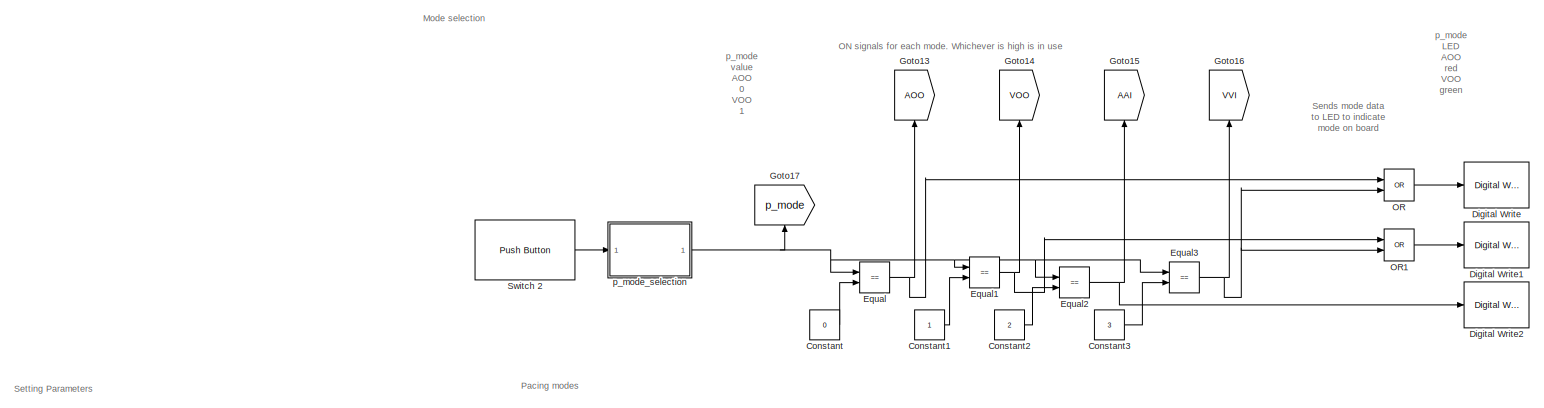
[diagram: root canvas - part 1/4, top center region]
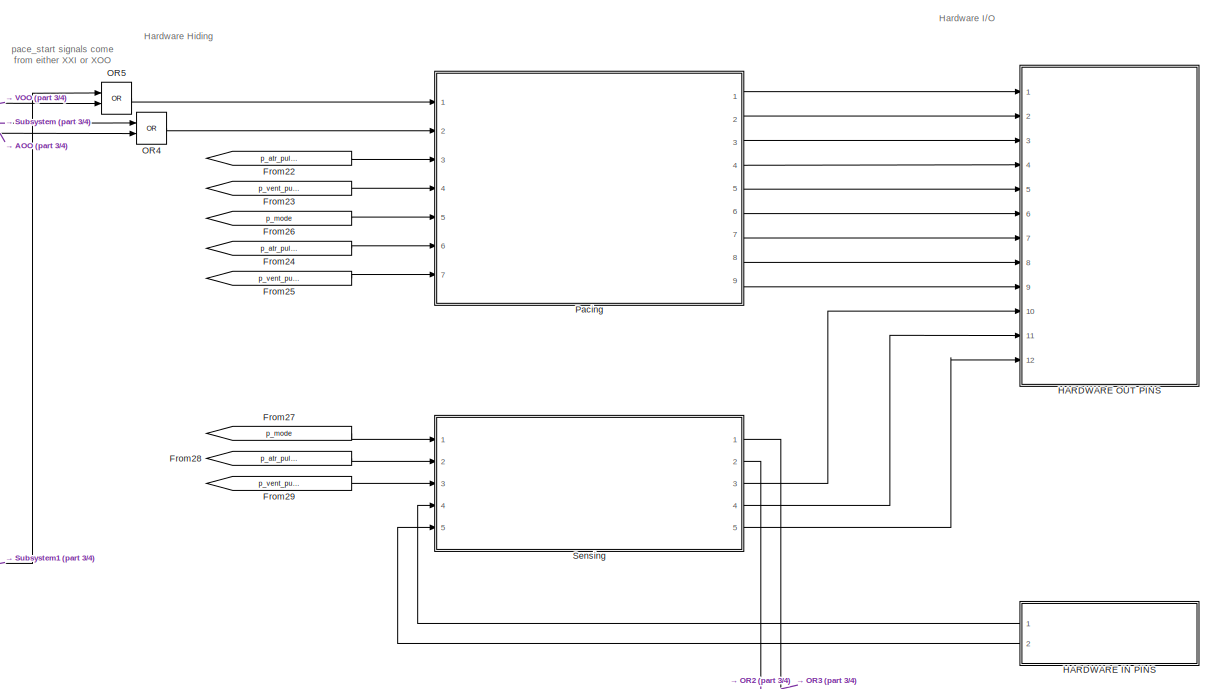
[diagram: root canvas - part 2/4, middle right region]
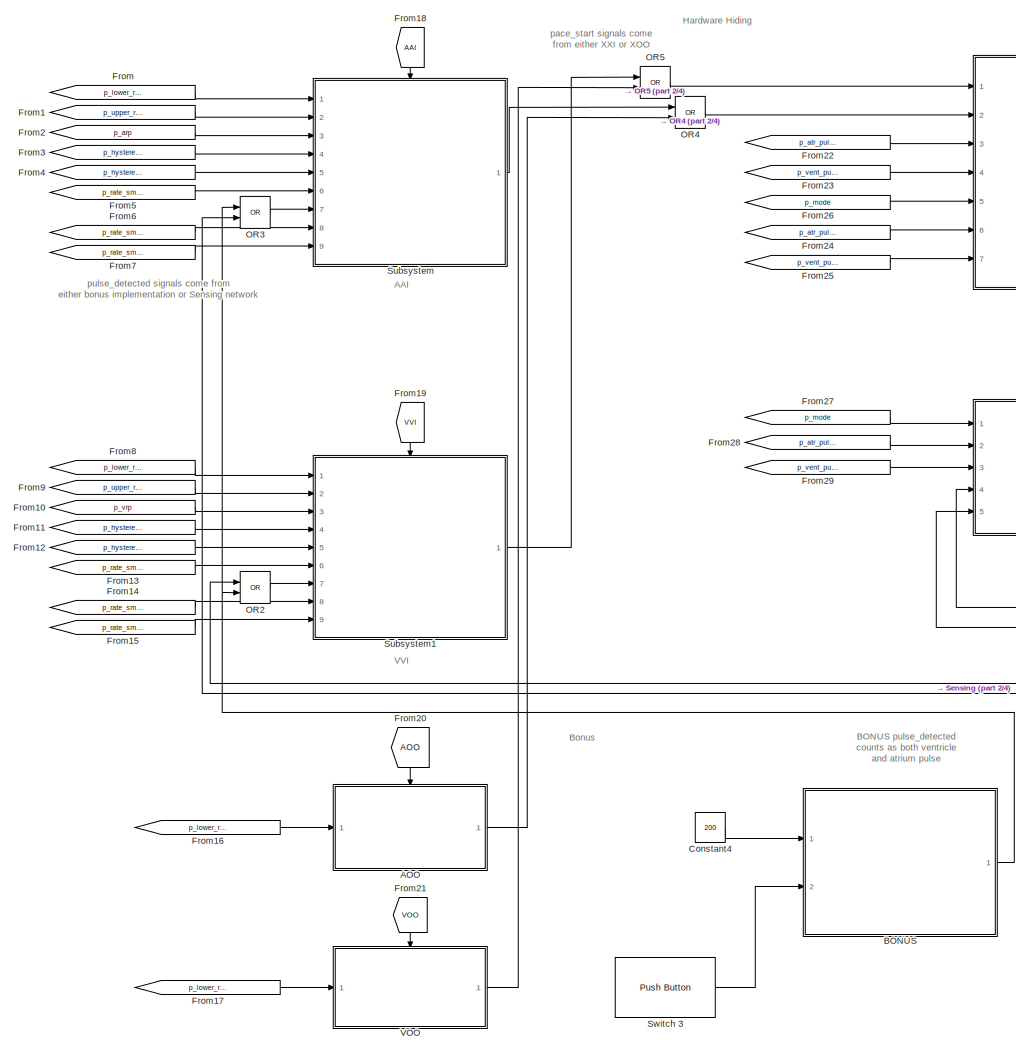
[diagram: root canvas - part 3/4, central region]
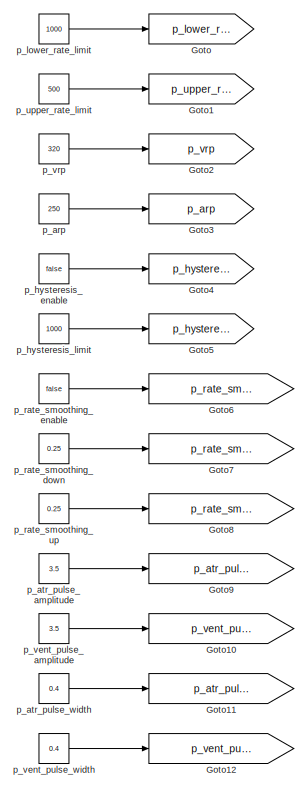
[diagram: root canvas - part 4/4, middle left region]
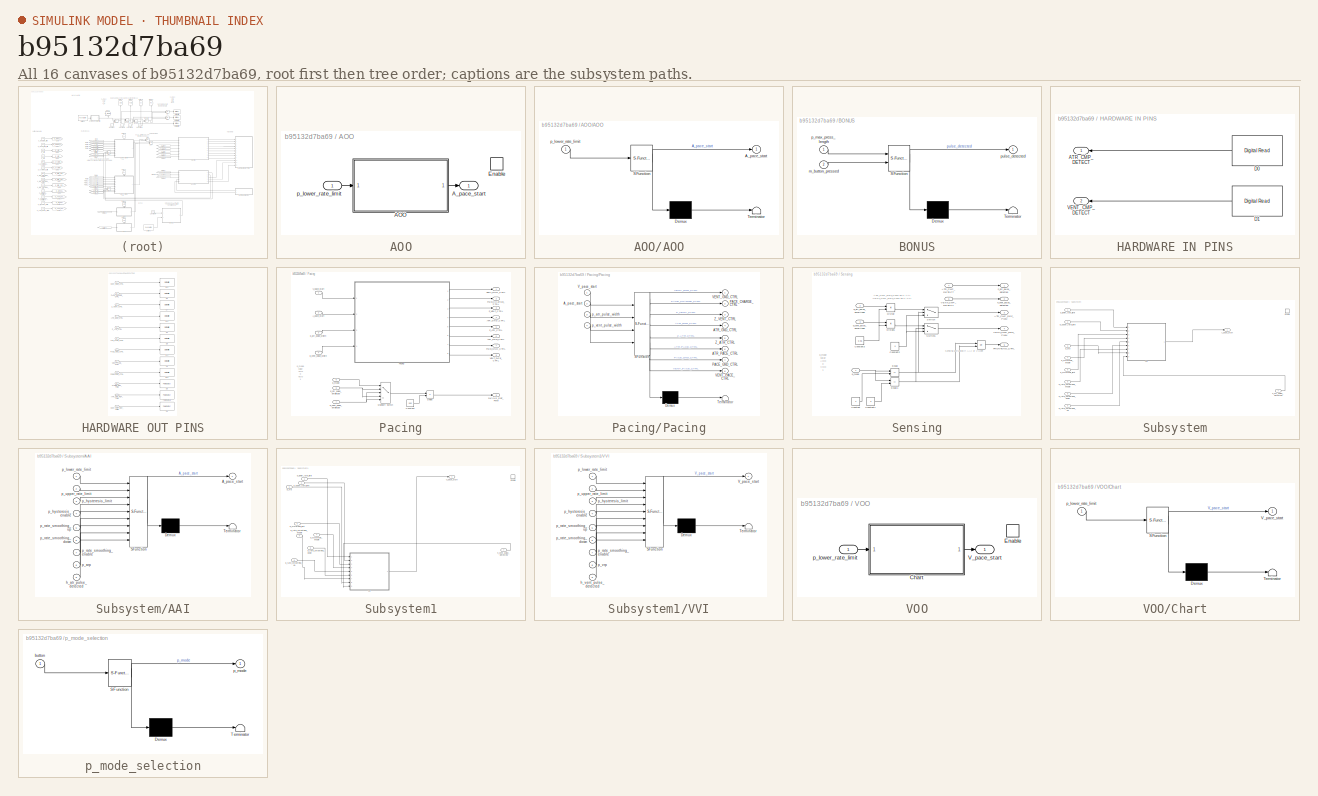
[diagram: thumbnail index - all 16 canvases of the model, root first then tree order]
MODEL slx_b95132d7ba69
KIND model
CONFIG AbsTol = auto
CONFIG EnableMultiTasking = on
CONFIG FixedStep = 1e-3
CONFIG MaxStep = auto
CONFIG MinStep = auto
CONFIG RelTol = 1e-3
CONFIG SampleTimeConstraint = Unconstrained
CONFIG Solver = FixedStepAuto
CONFIG SolverName = FixedStepAuto
CONFIG StartTime = 0.0
CONFIG StopTime = 3
BLOCK [SubSystem] AOO
  Ports = [1, 1, 1]
  RequestExecContextInheritance = off
BLOCK [SubSystem] AOO/AOO
  ErrorFcn = Stateflow.Translate.translate
  PermitHierarchicalResolution = ExplicitOnly
  Ports = [1, 1]
  RequestExecContextInheritance = off
  SFBlockType = Chart
  TreatAsAtomicUnit = on
BLOCK [Demux] AOO/AOO/ Demux 
  Outputs = 1
  Ports = [1, 1]
BLOCK [S-Function] AOO/AOO/ SFunction 
  EnableBusSupport = on
  FunctionName = sf_sfun
  PortCounts = [1 2]
  Ports = [1, 2]
  SFcnIsStateOwnerBlock = off
  SFunctionDeploymentMode = off
  Tag = Stateflow S-Function 6
BLOCK [Terminator] AOO/AOO/ Terminator 
BLOCK [Outport] AOO/AOO/A_pace_start
BLOCK [Inport] AOO/AOO/p_lower_rate_limit
BLOCK [Outport] AOO/A_pace_start
BLOCK [EnablePort] AOO/Enable
  Ports = []
BLOCK [Inport] AOO/p_lower_rate_limit
BLOCK [SubSystem] BONUS
  ErrorFcn = Stateflow.Translate.translate
  PermitHierarchicalResolution = ExplicitOnly
  Ports = [2, 1]
  RequestExecContextInheritance = off
  SFBlockType = Chart
  TreatAsAtomicUnit = on
BLOCK [Demux] BONUS/ Demux 
  Outputs = 1
  Ports = [1, 1]
BLOCK [S-Function] BONUS/ SFunction 
  EnableBusSupport = on
  FunctionName = sf_sfun
  PortCounts = [2 2]
  Ports = [2, 2]
  SFcnIsStateOwnerBlock = off
  SFunctionDeploymentMode = off
  Tag = Stateflow S-Function 4
BLOCK [Terminator] BONUS/ Terminator 
BLOCK [Inport] BONUS/m_button_pressed
  Port = 2
BLOCK [Inport] BONUS/p_max_press_length
BLOCK [Outport] BONUS/pulse_detected
BLOCK [Constant] Constant
  Value = 0
BLOCK [Constant] Constant1
BLOCK [Constant] Constant2
  Value = 2
BLOCK [Constant] Constant3
  Value = 3
BLOCK [Constant] Constant4
  Value = 200
BLOCK [Reference] Digital Write  REF=frdmk64flib/Digital Write
  Ports = [1]
  SourceBlock = frdmk64flib/Digital Write
  SourceProductBaseCode = EC_FRDM_K64F
  SourceType = freedomk64f.DigitalWrite
BLOCK [Reference] Digital Write1  REF=frdmk64flib/Digital Write
  Ports = [1]
  SourceBlock = frdmk64flib/Digital Write
  SourceProductBaseCode = EC_FRDM_K64F
  SourceType = freedomk64f.DigitalWrite
BLOCK [Reference] Digital Write2  REF=frdmk64flib/Digital Write
  Ports = [1]
  SourceBlock = frdmk64flib/Digital Write
  SourceProductBaseCode = EC_FRDM_K64F
  SourceType = freedomk64f.DigitalWrite
BLOCK [RelationalOperator] Equal
  InputSameDT = off
  Operator = ==
  OutDataTypeStr = boolean
  Ports = [2, 1]
  RndMeth = Simplest
BLOCK [RelationalOperator] Equal1
  InputSameDT = off
  Operator = ==
  OutDataTypeStr = boolean
  Ports = [2, 1]
  RndMeth = Simplest
BLOCK [RelationalOperator] Equal2
  InputSameDT = off
  Operator = ==
  OutDataTypeStr = boolean
  Ports = [2, 1]
  RndMeth = Simplest
BLOCK [RelationalOperator] Equal3
  InputSameDT = off
  Operator = ==
  OutDataTypeStr = boolean
  Ports = [2, 1]
  RndMeth = Simplest
BLOCK [From] From
  GotoTag = p_lower_rate_limit
BLOCK [From] From1
  GotoTag = p_upper_rate_limit
BLOCK [From] From10
  GotoTag = p_vrp
BLOCK [From] From11
  GotoTag = p_hysteresis_enable
BLOCK [From] From12
  GotoTag = p_hysteresis_limit
BLOCK [From] From13
  GotoTag = p_rate_smoothing_enable
BLOCK [From] From14
  GotoTag = p_rate_smoothing_down
BLOCK [From] From15
  GotoTag = p_rate_smoothing_up
BLOCK [From] From16
  GotoTag = p_lower_rate_limit
BLOCK [From] From17
  GotoTag = p_lower_rate_limit
BLOCK [From] From18
  GotoTag = AAI
  NameLocation = left
BLOCK [From] From19
  GotoTag = VVI
  NameLocation = left
BLOCK [From] From2
  GotoTag = p_arp
BLOCK [From] From20
  GotoTag = AOO
  NameLocation = left
BLOCK [From] From21
  GotoTag = VOO
  NameLocation = left
BLOCK [From] From22
  GotoTag = p_atr_pulse_width
BLOCK [From] From23
  GotoTag = p_vent_pulse_width
BLOCK [From] From24
  GotoTag = p_atr_pulse_amplitude
BLOCK [From] From25
  GotoTag = p_vent_pulse_amplitude
BLOCK [From] From26
  GotoTag = p_mode
BLOCK [From] From27
  GotoTag = p_mode
BLOCK [From] From28
  GotoTag = p_atr_pulse_amplitude
BLOCK [From] From29
  GotoTag = p_vent_pulse_amplitude
BLOCK [From] From3
  GotoTag = p_hysteresis_enable
BLOCK [From] From4
  GotoTag = p_hysteresis_limit
BLOCK [From] From5
  GotoTag = p_rate_smoothing_enable
BLOCK [From] From6
  GotoTag = p_rate_smoothing_down
BLOCK [From] From7
  GotoTag = p_rate_smoothing_up
BLOCK [From] From8
  GotoTag = p_lower_rate_limit
BLOCK [From] From9
  GotoTag = p_upper_rate_limit
BLOCK [Goto] Goto
  GotoTag = p_lower_rate_limit
BLOCK [Goto] Goto1
  GotoTag = p_upper_rate_limit
BLOCK [Goto] Goto10
  GotoTag = p_vent_pulse_amplitude
BLOCK [Goto] Goto11
  GotoTag = p_atr_pulse_width
BLOCK [Goto] Goto12
  GotoTag = p_vent_pulse_width
BLOCK [Goto] Goto13
  GotoTag = AOO
  NameLocation = right
BLOCK [Goto] Goto14
  GotoTag = VOO
  NameLocation = right
BLOCK [Goto] Goto15
  GotoTag = AAI
  NameLocation = right
BLOCK [Goto] Goto16
  GotoTag = VVI
  NameLocation = right
BLOCK [Goto] Goto17
  GotoTag = p_mode
  NameLocation = right
BLOCK [Goto] Goto2
  GotoTag = p_vrp
BLOCK [Goto] Goto3
  GotoTag = p_arp
BLOCK [Goto] Goto4
  GotoTag = p_hysteresis_enable
BLOCK [Goto] Goto5
  GotoTag = p_hysteresis_limit
BLOCK [Goto] Goto6
  GotoTag = p_rate_smoothing_enable
BLOCK [Goto] Goto7
  GotoTag = p_rate_smoothing_down
BLOCK [Goto] Goto8
  GotoTag = p_rate_smoothing_up
BLOCK [Goto] Goto9
  GotoTag = p_atr_pulse_amplitude
BLOCK [SubSystem] HARDWARE IN PINS
  Ports = [0, 2]
  RequestExecContextInheritance = off
BLOCK [Outport] HARDWARE IN PINS/ATR_CMP_DETECT
BLOCK [Reference] HARDWARE IN PINS/D0  REF=frdmk64flib/Digital Read
  Ports = [0, 1]
  SourceBlock = frdmk64flib/Digital Read
  SourceProductBaseCode = EC_FRDM_K64F
  SourceType = freedomk64f.DigitalRead
BLOCK [Reference] HARDWARE IN PINS/D1  REF=frdmk64flib/Digital Read
  Ports = [0, 1]
  SourceBlock = frdmk64flib/Digital Read
  SourceProductBaseCode = EC_FRDM_K64F
  SourceType = freedomk64f.DigitalRead
BLOCK [Outport] HARDWARE IN PINS/VENT_CMP_DETECT
  Port = 2
BLOCK [SubSystem] HARDWARE OUT PINS
  Ports = [12]
  RequestExecContextInheritance = off
BLOCK [Inport] HARDWARE OUT PINS/ATR_CMP_REF_PWM
  Port = 10
BLOCK [Inport] HARDWARE OUT PINS/ATR_GND_CTRL
  Port = 4
BLOCK [Inport] HARDWARE OUT PINS/ATR_PACE_CTRL
  Port = 6
BLOCK [Reference] HARDWARE OUT PINS/D10  REF=frdmk64flib/Digital Write
  Ports = [1]
  SourceBlock = frdmk64flib/Digital Write
  SourceProductBaseCode = EC_FRDM_K64F
  SourceType = freedomk64f.DigitalWrite
BLOCK [Reference] HARDWARE OUT PINS/D11  REF=frdmk64flib/Digital Write
  Ports = [1]
  SourceBlock = frdmk64flib/Digital Write
  SourceProductBaseCode = EC_FRDM_K64F
  SourceType = freedomk64f.DigitalWrite
BLOCK [Reference] HARDWARE OUT PINS/D12  REF=frdmk64flib/Digital Write
  Ports = [1]
  SourceBlock = frdmk64flib/Digital Write
  SourceProductBaseCode = EC_FRDM_K64F
  SourceType = freedomk64f.DigitalWrite
BLOCK [Reference] HARDWARE OUT PINS/D13  REF=frdmk64flib/Digital Write
  Ports = [1]
  SourceBlock = frdmk64flib/Digital Write
  SourceProductBaseCode = EC_FRDM_K64F
  SourceType = freedomk64f.DigitalWrite
BLOCK [Reference] HARDWARE OUT PINS/D2  REF=frdmk64flib/Digital Write
  Ports = [1]
  SourceBlock = frdmk64flib/Digital Write
  SourceProductBaseCode = EC_FRDM_K64F
  SourceType = freedomk64f.DigitalWrite
BLOCK [Reference] HARDWARE OUT PINS/D3  REF=frdmk64flib/PWM Output
  Ports = [1]
  SourceBlock = frdmk64flib/PWM Output
  SourceProductBaseCode = EC_FRDM_K64F
  SourceType = freedomk64f.PWMOutput
BLOCK [Reference] HARDWARE OUT PINS/D4  REF=frdmk64flib/Digital Write
  Ports = [1]
  SourceBlock = frdmk64flib/Digital Write
  SourceProductBaseCode = EC_FRDM_K64F
  SourceType = freedomk64f.DigitalWrite
BLOCK [Reference] HARDWARE OUT PINS/D5  REF=frdmk64flib/PWM Output
  Ports = [1]
  SourceBlock = frdmk64flib/PWM Output
  SourceProductBaseCode = EC_FRDM_K64F
  SourceType = freedomk64f.PWMOutput
BLOCK [Reference] HARDWARE OUT PINS/D7  REF=frdmk64flib/Digital Write
  Ports = [1]
  SourceBlock = frdmk64flib/Digital Write
  SourceProductBaseCode = EC_FRDM_K64F
  SourceType = freedomk64f.DigitalWrite
BLOCK [Reference] HARDWARE OUT PINS/D8  REF=frdmk64flib/Digital Write
  Ports = [1]
  SourceBlock = frdmk64flib/Digital Write
  SourceProductBaseCode = EC_FRDM_K64F
  SourceType = freedomk64f.DigitalWrite
BLOCK [Reference] HARDWARE OUT PINS/D9  REF=frdmk64flib/Digital Write
  Ports = [1]
  SourceBlock = frdmk64flib/Digital Write
  SourceProductBaseCode = EC_FRDM_K64F
  SourceType = freedomk64f.DigitalWrite
BLOCK [Inport] HARDWARE OUT PINS/FRONTEND_CTRL
  Port = 12
BLOCK [Inport] HARDWARE OUT PINS/PACE_CHARGE_CTRL
  Port = 2
BLOCK [Inport] HARDWARE OUT PINS/PACE_GND_CTRL
  Port = 7
BLOCK [Inport] HARDWARE OUT PINS/PACING_REF_PWM
  Port = 9
BLOCK [Reference] HARDWARE OUT PINS/PWM Output1  REF=frdmk64flib/PWM Output
  Ports = [1]
  SourceBlock = frdmk64flib/PWM Output
  SourceProductBaseCode = EC_FRDM_K64F
  SourceType = freedomk64f.PWMOutput
BLOCK [Inport] HARDWARE OUT PINS/VENT_CMP_REF_PWM
  Port = 11
BLOCK [Inport] HARDWARE OUT PINS/VENT_GND_CTRL
BLOCK [Inport] HARDWARE OUT PINS/VENT_PACE_CTRL
  Port = 8
BLOCK [Inport] HARDWARE OUT PINS/Z_ATR_CTRL
  Port = 5
BLOCK [Inport] HARDWARE OUT PINS/Z_VENT_CTRL
  Port = 3
BLOCK [Logic] OR
  AllPortsSameDT = off
  IconShape = distinctive
  Operator = OR
  OutDataTypeStr = boolean
  Ports = [2, 1]
BLOCK [Logic] OR1
  AllPortsSameDT = off
  IconShape = distinctive
  Operator = OR
  OutDataTypeStr = boolean
  Ports = [2, 1]
BLOCK [Logic] OR2
  AllPortsSameDT = off
  IconShape = distinctive
  Operator = OR
  OutDataTypeStr = boolean
  Ports = [2, 1]
BLOCK [Logic] OR3
  AllPortsSameDT = off
  IconShape = distinctive
  Operator = OR
  OutDataTypeStr = boolean
  Ports = [2, 1]
BLOCK [Logic] OR4
  AllPortsSameDT = off
  IconShape = distinctive
  Operator = OR
  OutDataTypeStr = boolean
  Ports = [2, 1]
BLOCK [Logic] OR5
  AllPortsSameDT = off
  IconShape = distinctive
  Operator = OR
  OutDataTypeStr = boolean
  Ports = [2, 1]
BLOCK [SubSystem] Pacing
  Ports = [7, 9]
  RequestExecContextInheritance = off
BLOCK [Outport] Pacing/ATR_GND_CTRL
  Port = 4
BLOCK [Outport] Pacing/ATR_PACE_CTRL
  Port = 6
BLOCK [Inport] Pacing/A_pace_start
  Port = 2
BLOCK [Constant] Pacing/Constant
  Value = 0.05
BLOCK [Product] Pacing/Divide
  Inputs = */
  Ports = [2, 1]
BLOCK [MultiPortSwitch] Pacing/Multiport Switch
  DataPortOrder = Zero-based contiguous
  InputSameDT = off
  Inputs = 4
  Ports = [5, 1]
  SaturateOnIntegerOverflow = off
  zeroidx = on
BLOCK [Outport] Pacing/PACE_CHARGE_CTRL
  Port = 2
BLOCK [Outport] Pacing/PACE_GND_CTRL
  Port = 7
BLOCK [Outport] Pacing/PACING_REF_PWM
  Port = 9
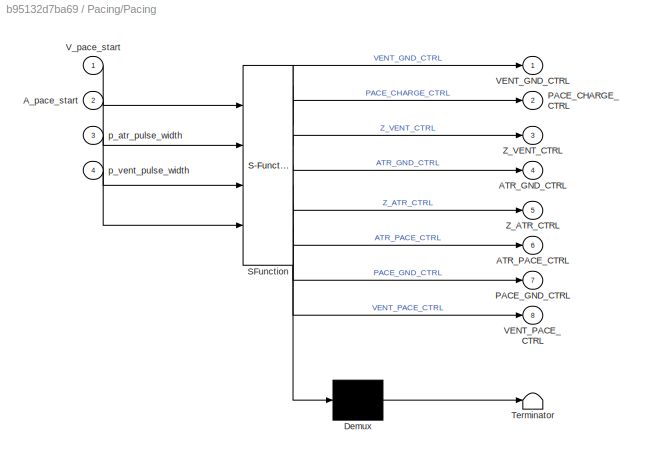
BLOCK [SubSystem] Pacing/Pacing
  ErrorFcn = Stateflow.Translate.translate
  PermitHierarchicalResolution = ExplicitOnly
  Ports = [4, 8]
  RequestExecContextInheritance = off
  SFBlockType = Chart
  TreatAsAtomicUnit = on
BLOCK [Demux] Pacing/Pacing/ Demux 
  Outputs = 1
  Ports = [1, 1]
BLOCK [S-Function] Pacing/Pacing/ SFunction 
  EnableBusSupport = on
  FunctionName = sf_sfun
  PortCounts = [4 9]
  Ports = [4, 9]
  SFcnIsStateOwnerBlock = off
  SFunctionDeploymentMode = off
  Tag = Stateflow S-Function 2
BLOCK [Terminator] Pacing/Pacing/ Terminator 
BLOCK [Outport] Pacing/Pacing/ATR_GND_CTRL
  Port = 4
BLOCK [Outport] Pacing/Pacing/ATR_PACE_CTRL
  Port = 6
BLOCK [Inport] Pacing/Pacing/A_pace_start
  Port = 2
BLOCK [Outport] Pacing/Pacing/PACE_CHARGE_CTRL
  Port = 2
BLOCK [Outport] Pacing/Pacing/PACE_GND_CTRL
  Port = 7
BLOCK [Outport] Pacing/Pacing/VENT_GND_CTRL
BLOCK [Outport] Pacing/Pacing/VENT_PACE_CTRL
  Port = 8
BLOCK [Inport] Pacing/Pacing/V_pace_start
BLOCK [Outport] Pacing/Pacing/Z_ATR_CTRL
  Port = 5
BLOCK [Outport] Pacing/Pacing/Z_VENT_CTRL
  Port = 3
BLOCK [Inport] Pacing/Pacing/p_atr_pulse_width
  Port = 3
BLOCK [Inport] Pacing/Pacing/p_vent_pulse_width
  Port = 4
BLOCK [Outport] Pacing/VENT_GND_CTRL
BLOCK [Outport] Pacing/VENT_PACE_CTRL
  Port = 8
BLOCK [Inport] Pacing/V_pace_start
BLOCK [Outport] Pacing/Z_ATR_CTRL
  Port = 5
BLOCK [Outport] Pacing/Z_VENT_CTRL
  Port = 3
BLOCK [Inport] Pacing/p_atr_pulse_amplitude
  Port = 6
BLOCK [Inport] Pacing/p_atr_pulse_width
  Port = 3
BLOCK [Inport] Pacing/p_mode
  Port = 5
BLOCK [Inport] Pacing/p_vent_pulse_amplitude
  Port = 7
BLOCK [Inport] Pacing/p_vent_pulse_width
  Port = 4
BLOCK [SubSystem] Sensing
  Ports = [5, 5]
  RequestExecContextInheritance = off
BLOCK [Inport] Sensing/ATR_CMP_DETECT
  Port = 4
BLOCK [Outport] Sensing/ATR_CMP_REF_PWM
  Port = 3
BLOCK [Constant] Sensing/Constant
  Value = 2
BLOCK [Constant] Sensing/Constant1
  Value = 3
BLOCK [Constant] Sensing/Constant2
  Value = 0
BLOCK [Constant] Sensing/Constant3
  Value = 0.05
BLOCK [Product] Sensing/Divide
  Inputs = */
  Ports = [2, 1]
BLOCK [Product] Sensing/Divide1
  Inputs = */
  Ports = [2, 1]
BLOCK [RelationalOperator] Sensing/Equal
  InputSameDT = off
  Operator = ==
  OutDataTypeStr = boolean
  Ports = [2, 1]
  RndMeth = Simplest
BLOCK [RelationalOperator] Sensing/Equal1
  InputSameDT = off
  Operator = ==
  OutDataTypeStr = boolean
  Ports = [2, 1]
  RndMeth = Simplest
BLOCK [Outport] Sensing/FRONTEND_CTRL
  Port = 5
BLOCK [Logic] Sensing/OR
  AllPortsSameDT = off
  IconShape = distinctive
  Operator = OR
  OutDataTypeStr = boolean
  Ports = [2, 1]
BLOCK [Switch] Sensing/Switch
  Criteria = u2 > Threshold
  InputSameDT = off
  SaturateOnIntegerOverflow = off
BLOCK [Switch] Sensing/Switch1
  Criteria = u2 > Threshold
  InputSameDT = off
  SaturateOnIntegerOverflow = off
BLOCK [Inport] Sensing/VENT_CMP_DETECT
  Port = 5
BLOCK [Outport] Sensing/VENT_CMP_REF_PWM
  Port = 4
BLOCK [Outport] Sensing/h_atr_pulse_detected
BLOCK [Outport] Sensing/h_vent_pulse_detected
  Port = 2
BLOCK [Inport] Sensing/p_atr_pulse_amplitude
  Port = 2
BLOCK [Inport] Sensing/p_mode
BLOCK [Inport] Sensing/p_vent_pulse_amplitude
  Port = 3
BLOCK [SubSystem] Subsystem
  Ports = [9, 1, 1]
  RequestExecContextInheritance = off
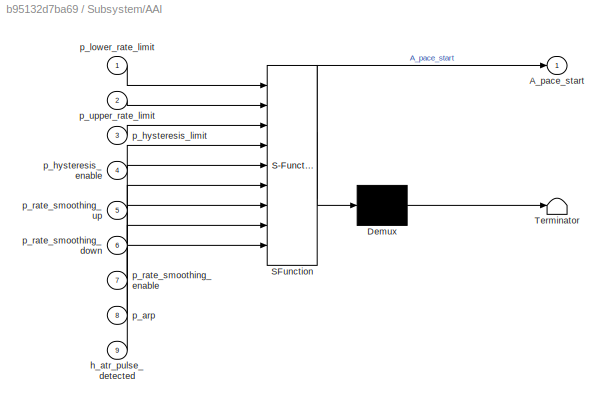
BLOCK [SubSystem] Subsystem/AAI
  ErrorFcn = Stateflow.Translate.translate
  PermitHierarchicalResolution = ExplicitOnly
  Ports = [9, 1]
  RequestExecContextInheritance = off
  SFBlockType = Chart
  TreatAsAtomicUnit = on
BLOCK [Demux] Subsystem/AAI/ Demux 
  Outputs = 1
  Ports = [1, 1]
BLOCK [S-Function] Subsystem/AAI/ SFunction 
  EnableBusSupport = on
  FunctionName = sf_sfun
  PortCounts = [9 2]
  Ports = [9, 2]
  SFcnIsStateOwnerBlock = off
  SFunctionDeploymentMode = off
  Tag = Stateflow S-Function 1
BLOCK [Terminator] Subsystem/AAI/ Terminator 
BLOCK [Outport] Subsystem/AAI/A_pace_start
BLOCK [Inport] Subsystem/AAI/h_atr_pulse_detected
  Port = 9
BLOCK [Inport] Subsystem/AAI/p_arp
  Port = 8
BLOCK [Inport] Subsystem/AAI/p_hysteresis_enable
  Port = 4
BLOCK [Inport] Subsystem/AAI/p_hysteresis_limit
  Port = 3
BLOCK [Inport] Subsystem/AAI/p_lower_rate_limit
BLOCK [Inport] Subsystem/AAI/p_rate_smoothing_down
  Port = 6
BLOCK [Inport] Subsystem/AAI/p_rate_smoothing_enable
  Port = 7
BLOCK [Inport] Subsystem/AAI/p_rate_smoothing_up
  Port = 5
BLOCK [Inport] Subsystem/AAI/p_upper_rate_limit
  Port = 2
BLOCK [Outport] Subsystem/A_pace_start
BLOCK [EnablePort] Subsystem/Enable
  Ports = []
BLOCK [Inport] Subsystem/h_atr_pulse_detected
  Port = 7
BLOCK [Inport] Subsystem/p_arp
  Port = 3
BLOCK [Inport] Subsystem/p_hysteresis_enable
  Port = 4
BLOCK [Inport] Subsystem/p_hysteresis_limit
  Port = 5
BLOCK [Inport] Subsystem/p_lower_rate_limit
BLOCK [Inport] Subsystem/p_rate_smoothing_down
  Port = 8
BLOCK [Inport] Subsystem/p_rate_smoothing_enable
  Port = 6
BLOCK [Inport] Subsystem/p_rate_smoothing_up
  Port = 9
BLOCK [Inport] Subsystem/p_upper_rate_limit
  Port = 2
BLOCK [SubSystem] Subsystem1
  Ports = [9, 1, 1]
  RequestExecContextInheritance = off
BLOCK [EnablePort] Subsystem1/Enable
  Ports = []
BLOCK [SubSystem] Subsystem1/VVI
  ErrorFcn = Stateflow.Translate.translate
  PermitHierarchicalResolution = ExplicitOnly
  Ports = [9, 1]
  RequestExecContextInheritance = off
  SFBlockType = Chart
  TreatAsAtomicUnit = on
BLOCK [Demux] Subsystem1/VVI/ Demux 
  Outputs = 1
  Ports = [1, 1]
BLOCK [S-Function] Subsystem1/VVI/ SFunction 
  EnableBusSupport = on
  FunctionName = sf_sfun
  PortCounts = [9 2]
  Ports = [9, 2]
  SFcnIsStateOwnerBlock = off
  SFunctionDeploymentMode = off
  Tag = Stateflow S-Function 3
BLOCK [Terminator] Subsystem1/VVI/ Terminator 
BLOCK [Outport] Subsystem1/VVI/V_pace_start
BLOCK [Inport] Subsystem1/VVI/h_vent_pulse_detected
  Port = 9
BLOCK [Inport] Subsystem1/VVI/p_hysteresis_enable
  Port = 4
BLOCK [Inport] Subsystem1/VVI/p_hysteresis_limit
  Port = 3
BLOCK [Inport] Subsystem1/VVI/p_lower_rate_limit
BLOCK [Inport] Subsystem1/VVI/p_rate_smoothing_down
  Port = 6
BLOCK [Inport] Subsystem1/VVI/p_rate_smoothing_enable
  Port = 7
BLOCK [Inport] Subsystem1/VVI/p_rate_smoothing_up
  Port = 5
BLOCK [Inport] Subsystem1/VVI/p_upper_rate_limit
  Port = 2
BLOCK [Inport] Subsystem1/VVI/p_vrp
  Port = 8
BLOCK [Outport] Subsystem1/V_pace_start
BLOCK [Inport] Subsystem1/h_vent_pulse_detected
  Port = 7
BLOCK [Inport] Subsystem1/p_hysteresis_enable
  Port = 4
BLOCK [Inport] Subsystem1/p_hysteresis_limit
  Port = 5
BLOCK [Inport] Subsystem1/p_lower_rate_limit
BLOCK [Inport] Subsystem1/p_rate_smoothing_down
  Port = 8
BLOCK [Inport] Subsystem1/p_rate_smoothing_enable
  Port = 6
BLOCK [Inport] Subsystem1/p_rate_smoothing_up
  Port = 9
BLOCK [Inport] Subsystem1/p_upper_rate_limit
  Port = 2
BLOCK [Inport] Subsystem1/p_vrp
  Port = 3
BLOCK [Reference] Switch 2  REF=frdmk64flib/Push Button
  Ports = [0, 1]
  SourceBlock = frdmk64flib/Push Button
  SourceProductBaseCode = EC_FRDM_K64F
  SourceType = freedomk64f.PushButton
BLOCK [Reference] Switch 3  REF=frdmk64flib/Push Button
  Ports = [0, 1]
  SourceBlock = frdmk64flib/Push Button
  SourceProductBaseCode = EC_FRDM_K64F
  SourceType = freedomk64f.PushButton
BLOCK [SubSystem] VOO
  Ports = [1, 1, 1]
  RequestExecContextInheritance = off
BLOCK [SubSystem] VOO/Chart
  ErrorFcn = Stateflow.Translate.translate
  PermitHierarchicalResolution = ExplicitOnly
  Ports = [1, 1]
  RequestExecContextInheritance = off
  SFBlockType = Chart
  TreatAsAtomicUnit = on
BLOCK [Demux] VOO/Chart/ Demux 
  Outputs = 1
  Ports = [1, 1]
BLOCK [S-Function] VOO/Chart/ SFunction 
  EnableBusSupport = on
  FunctionName = sf_sfun
  PortCounts = [1 2]
  Ports = [1, 2]
  SFcnIsStateOwnerBlock = off
  SFunctionDeploymentMode = off
  Tag = Stateflow S-Function 7
BLOCK [Terminator] VOO/Chart/ Terminator 
BLOCK [Outport] VOO/Chart/V_pace_start
BLOCK [Inport] VOO/Chart/p_lower_rate_limit
BLOCK [EnablePort] VOO/Enable
  Ports = []
BLOCK [Outport] VOO/V_pace_start
BLOCK [Inport] VOO/p_lower_rate_limit
BLOCK [Constant] p_arp
  Value = 250
BLOCK [Constant] p_atr_pulse_amplitude
  Value = 3.5
BLOCK [Constant] p_atr_pulse_width
  Value = 0.4
BLOCK [Constant] p_hysteresis_enable
  Value = false
BLOCK [Constant] p_hysteresis_limit
  Value = 1000
BLOCK [Constant] p_lower_rate_limit
  Value = 1000
BLOCK [SubSystem] p_mode_selection
  ErrorFcn = Stateflow.Translate.translate
  PermitHierarchicalResolution = ExplicitOnly
  Ports = [1, 1]
  RequestExecContextInheritance = off
  SFBlockType = Chart
  TreatAsAtomicUnit = on
BLOCK [Demux] p_mode_selection/ Demux 
  Outputs = 1
  Ports = [1, 1]
BLOCK [S-Function] p_mode_selection/ SFunction 
  EnableBusSupport = on
  FunctionName = sf_sfun
  PortCounts = [1 2]
  Ports = [1, 2]
  SFcnIsStateOwnerBlock = off
  SFunctionDeploymentMode = off
  Tag = Stateflow S-Function 5
BLOCK [Terminator] p_mode_selection/ Terminator 
BLOCK [Inport] p_mode_selection/button
BLOCK [Outport] p_mode_selection/p_mode
BLOCK [Constant] p_rate_smoothing_down
  Value = 0.25
BLOCK [Constant] p_rate_smoothing_enable
  Value = false
BLOCK [Constant] p_rate_smoothing_up
  Value = 0.25
BLOCK [Constant] p_upper_rate_limit
  Value = 500
BLOCK [Constant] p_vent_pulse_amplitude
  Value = 3.5
BLOCK [Constant] p_vent_pulse_width
  Value = 0.4
BLOCK [Constant] p_vrp
  Value = 320
ANNOTATION (root): p_mode LED AOO red VOO green AAI blue VVI yellow
ANNOTATION (root): p_mode value AOO 0 VOO 1 AAI 2 VVI 3
ANNOTATION (root): AAI
ANNOTATION (root): BONUS pulse_detected counts as both ventricle and atrium pulse
ANNOTATION (root): Bonus
ANNOTATION (root): Hardware Hiding
ANNOTATION (root): Hardware I/O
ANNOTATION (root): Mode selection
ANNOTATION (root): ON signals for each mode. Whichever is high is in use
ANNOTATION (root): Pacing modes
ANNOTATION (root): Sends mode data to LED to indicate mode on board
ANNOTATION (root): Setting Parameters
ANNOTATION (root): VVI
ANNOTATION (root): pace_start signals come from either XXI or XOO
ANNOTATION (root): pulse_detected signals come from either bonus implementation or Sensing network
ANNOTATION Pacing: p_mode value AOO 0 VOO 1 AAI 2 VVI 3
ANNOTATION Sensing: p_mode value AOO 0 VOO 1 AAI 2 VVI 3
ANNOTATION Sensing: ATR_CMP_REF_PWM on if AAI VENT_CMP_REF_PWM on if VVI
ANNOTATION Sensing: Sensing activated if AAI or VVI
LINE AOO/AOO:1 -> AOO/A_pace_start:1
LINE AOO/p_lower_rate_limit:1 -> AOO/AOO:1
LINE AOO:1 -> OR4:2
NET BONUS:1 -> OR2:2, OR3:1
LINE Constant1:1 -> Equal1:2
LINE Constant2:1 -> Equal2:2
LINE Constant3:1 -> Equal3:2
LINE Constant4:1 -> BONUS:1
LINE Constant:1 -> Equal:2
NET Equal1:1 -> Goto14:1, OR1:1
NET Equal2:1 -> Digital Write2:1, Goto15:1
NET Equal3:1 -> Goto16:1, OR1:2, OR:2
NET Equal:1 -> Goto13:1, OR:1
LINE From10:1 -> Subsystem1:3
LINE From11:1 -> Subsystem1:4
LINE From12:1 -> Subsystem1:5
LINE From13:1 -> Subsystem1:6
LINE From14:1 -> Subsystem1:8
LINE From15:1 -> Subsystem1:9
LINE From16:1 -> AOO:1
LINE From17:1 -> VOO:1
LINE From18:1 -> Subsystem:enable
LINE From19:1 -> Subsystem1:enable
LINE From1:1 -> Subsystem:2
LINE From20:1 -> AOO:enable
LINE From21:1 -> VOO:enable
LINE From22:1 -> Pacing:3
LINE From23:1 -> Pacing:4
LINE From24:1 -> Pacing:6
LINE From25:1 -> Pacing:7
LINE From26:1 -> Pacing:5
LINE From27:1 -> Sensing:1
LINE From28:1 -> Sensing:2
LINE From29:1 -> Sensing:3
LINE From2:1 -> Subsystem:3
LINE From3:1 -> Subsystem:4
LINE From4:1 -> Subsystem:5
LINE From5:1 -> Subsystem:6
LINE From6:1 -> Subsystem:8
LINE From7:1 -> Subsystem:9
LINE From8:1 -> Subsystem1:1
LINE From9:1 -> Subsystem1:2
LINE From:1 -> Subsystem:1
LINE HARDWARE IN PINS/D0:1 -> HARDWARE IN PINS/ATR_CMP_DETECT:1
LINE HARDWARE IN PINS/D1:1 -> HARDWARE IN PINS/VENT_CMP_DETECT:1
LINE HARDWARE IN PINS:1 -> Sensing:4
LINE HARDWARE IN PINS:2 -> Sensing:5
LINE HARDWARE OUT PINS/ATR_CMP_REF_PWM:1 -> HARDWARE OUT PINS/PWM Output1:1
LINE HARDWARE OUT PINS/ATR_GND_CTRL:1 -> HARDWARE OUT PINS/D11:1
LINE HARDWARE OUT PINS/ATR_PACE_CTRL:1 -> HARDWARE OUT PINS/D8:1
LINE HARDWARE OUT PINS/FRONTEND_CTRL:1 -> HARDWARE OUT PINS/D13:1
LINE HARDWARE OUT PINS/PACE_CHARGE_CTRL:1 -> HARDWARE OUT PINS/D2:1
LINE HARDWARE OUT PINS/PACE_GND_CTRL:1 -> HARDWARE OUT PINS/D10:1
LINE HARDWARE OUT PINS/PACING_REF_PWM:1 -> HARDWARE OUT PINS/D5:1
LINE HARDWARE OUT PINS/VENT_CMP_REF_PWM:1 -> HARDWARE OUT PINS/D3:1
LINE HARDWARE OUT PINS/VENT_GND_CTRL:1 -> HARDWARE OUT PINS/D12:1
LINE HARDWARE OUT PINS/VENT_PACE_CTRL:1 -> HARDWARE OUT PINS/D9:1
LINE HARDWARE OUT PINS/Z_ATR_CTRL:1 -> HARDWARE OUT PINS/D4:1
LINE HARDWARE OUT PINS/Z_VENT_CTRL:1 -> HARDWARE OUT PINS/D7:1
LINE OR1:1 -> Digital Write1:1
LINE OR2:1 -> Subsystem1:7
LINE OR3:1 -> Subsystem:7
LINE OR4:1 -> Pacing:2
LINE OR5:1 -> Pacing:1
LINE OR:1 -> Digital Write:1
LINE Pacing/A_pace_start:1 -> Pacing/Pacing:2
LINE Pacing/Constant:1 -> Pacing/Divide:2
LINE Pacing/Divide:1 -> Pacing/PACING_REF_PWM:1
LINE Pacing/Multiport Switch:1 -> Pacing/Divide:1
LINE Pacing/Pacing:1 -> Pacing/VENT_GND_CTRL:1
LINE Pacing/Pacing:2 -> Pacing/PACE_CHARGE_CTRL:1
LINE Pacing/Pacing:3 -> Pacing/Z_VENT_CTRL:1
LINE Pacing/Pacing:4 -> Pacing/ATR_GND_CTRL:1
LINE Pacing/Pacing:5 -> Pacing/Z_ATR_CTRL:1
LINE Pacing/Pacing:6 -> Pacing/ATR_PACE_CTRL:1
LINE Pacing/Pacing:7 -> Pacing/PACE_GND_CTRL:1
LINE Pacing/Pacing:8 -> Pacing/VENT_PACE_CTRL:1
LINE Pacing/V_pace_start:1 -> Pacing/Pacing:1
NET Pacing/p_atr_pulse_amplitude:1 -> Pacing/Multiport Switch:2, Pacing/Multiport Switch:4
LINE Pacing/p_atr_pulse_width:1 -> Pacing/Pacing:3
LINE Pacing/p_mode:1 -> Pacing/Multiport Switch:1
NET Pacing/p_vent_pulse_amplitude:1 -> Pacing/Multiport Switch:3, Pacing/Multiport Switch:5
LINE Pacing/p_vent_pulse_width:1 -> Pacing/Pacing:4
LINE Pacing:1 -> HARDWARE OUT PINS:1
LINE Pacing:2 -> HARDWARE OUT PINS:2
LINE Pacing:3 -> HARDWARE OUT PINS:3
LINE Pacing:4 -> HARDWARE OUT PINS:4
LINE Pacing:5 -> HARDWARE OUT PINS:5
LINE Pacing:6 -> HARDWARE OUT PINS:6
LINE Pacing:7 -> HARDWARE OUT PINS:7
LINE Pacing:8 -> HARDWARE OUT PINS:8
LINE Pacing:9 -> HARDWARE OUT PINS:9
LINE Sensing/ATR_CMP_DETECT:1 -> Sensing/h_atr_pulse_detected:1
LINE Sensing/Constant1:1 -> Sensing/Equal1:2
NET Sensing/Constant2:1 -> Sensing/Switch1:3, Sensing/Switch:3
NET Sensing/Constant3:1 -> Sensing/Divide1:2, Sensing/Divide:2
LINE Sensing/Constant:1 -> Sensing/Equal:2
LINE Sensing/Divide1:1 -> Sensing/Switch1:1
LINE Sensing/Divide:1 -> Sensing/Switch:1
NET Sensing/Equal1:1 -> Sensing/OR:2, Sensing/Switch1:2
NET Sensing/Equal:1 -> Sensing/OR:1, Sensing/Switch:2
LINE Sensing/OR:1 -> Sensing/FRONTEND_CTRL:1
LINE Sensing/Switch1:1 -> Sensing/VENT_CMP_REF_PWM:1
LINE Sensing/Switch:1 -> Sensing/ATR_CMP_REF_PWM:1
LINE Sensing/VENT_CMP_DETECT:1 -> Sensing/h_vent_pulse_detected:1
LINE Sensing/p_atr_pulse_amplitude:1 -> Sensing/Divide:1
NET Sensing/p_mode:1 -> Sensing/Equal1:1, Sensing/Equal:1
LINE Sensing/p_vent_pulse_amplitude:1 -> Sensing/Divide1:1
LINE Sensing:1 -> OR3:2
LINE Sensing:2 -> OR2:1
LINE Sensing:3 -> HARDWARE OUT PINS:10
LINE Sensing:4 -> HARDWARE OUT PINS:11
LINE Sensing:5 -> HARDWARE OUT PINS:12
LINE Subsystem/AAI:1 -> Subsystem/A_pace_start:1
LINE Subsystem/h_atr_pulse_detected:1 -> Subsystem/AAI:9
LINE Subsystem/p_arp:1 -> Subsystem/AAI:8
LINE Subsystem/p_hysteresis_enable:1 -> Subsystem/AAI:4
LINE Subsystem/p_hysteresis_limit:1 -> Subsystem/AAI:3
LINE Subsystem/p_lower_rate_limit:1 -> Subsystem/AAI:1
LINE Subsystem/p_rate_smoothing_down:1 -> Subsystem/AAI:6
LINE Subsystem/p_rate_smoothing_enable:1 -> Subsystem/AAI:7
LINE Subsystem/p_rate_smoothing_up:1 -> Subsystem/AAI:5
LINE Subsystem/p_upper_rate_limit:1 -> Subsystem/AAI:2
LINE Subsystem1/VVI:1 -> Subsystem1/V_pace_start:1
LINE Subsystem1/h_vent_pulse_detected:1 -> Subsystem1/VVI:9
LINE Subsystem1/p_hysteresis_enable:1 -> Subsystem1/VVI:4
LINE Subsystem1/p_hysteresis_limit:1 -> Subsystem1/VVI:3
LINE Subsystem1/p_lower_rate_limit:1 -> Subsystem1/VVI:1
LINE Subsystem1/p_rate_smoothing_down:1 -> Subsystem1/VVI:6
LINE Subsystem1/p_rate_smoothing_enable:1 -> Subsystem1/VVI:7
LINE Subsystem1/p_rate_smoothing_up:1 -> Subsystem1/VVI:5
LINE Subsystem1/p_upper_rate_limit:1 -> Subsystem1/VVI:2
LINE Subsystem1/p_vrp:1 -> Subsystem1/VVI:8
LINE Subsystem1:1 -> OR5:1
LINE Subsystem:1 -> OR4:1
LINE Switch 2:1 -> p_mode_selection:1
LINE Switch 3:1 -> BONUS:2
LINE VOO/Chart:1 -> VOO/V_pace_start:1
LINE VOO/p_lower_rate_limit:1 -> VOO/Chart:1
LINE VOO:1 -> OR5:2
LINE p_arp:1 -> Goto3:1
LINE p_atr_pulse_amplitude:1 -> Goto9:1
LINE p_atr_pulse_width:1 -> Goto11:1
LINE p_hysteresis_enable:1 -> Goto4:1
LINE p_hysteresis_limit:1 -> Goto5:1
LINE p_lower_rate_limit:1 -> Goto:1
NET p_mode_selection:1 -> Equal1:1, Equal2:1, Equal3:1, Equal:1, Goto17:1
LINE p_rate_smoothing_down:1 -> Goto7:1
LINE p_rate_smoothing_enable:1 -> Goto6:1
LINE p_rate_smoothing_up:1 -> Goto8:1
LINE p_upper_rate_limit:1 -> Goto1:1
LINE p_vent_pulse_amplitude:1 -> Goto10:1
LINE p_vent_pulse_width:1 -> Goto12:1
LINE p_vrp:1 -> Goto2:1
note: NET lines group one-source signal fan-out (src -> all destinations, sorted); 1:1 wires keep LINE
CHART Subsystem/AAI states=16 transitions=61
  STATE_LABEL 'Choose waiting limit before pacing'
  STATE_LABEL 'wait for refractory period'
  STATE_LABEL 'UPPER_RATE_LIMIT\nentry:\ni_limit = p_upper_rate_limit;\ni_limit = i_limit - p_arp;\nexit: i_last_period = p_arp + elapsed(msec);'
  STATE_LABEL 'to SENSED\n'
  STATE_LABEL 'SENSED'
  STATE_LABEL 'LOWER_RATE_LIMIT\nentry:\ni_limit = p_lower_rate_limit;\ni_limit = i_limit - p_arp;\nexit: i_last_period = p_arp + elapsed(msec);'
  STATE_LABEL 'INITIAL\nentry:\ni_limit = i_last_period;'
  STATE_LABEL 'Initial state sets\nlimit as LRL or HL.\nSets initial period as same'
  STATE_LABEL 'HYSTERESIS_LIMIT\nentry:\ni_limit = p_hysteresis_limit;\ni_limit = i_limit - p_arp;\nexit: i_last_period = p_arp + elapsed(msec);'
  STATE_LABEL 'RATE_SMOOTHING_DOWN\nentry:\ni_limit = i_last_period/(1-p_rate_smoothing_down);\ni_limit = i_limit - p_arp;\nexit: i_last_period = p_arp + elapsed(msec);'
  STATE_LABEL 'Sends 1 ms pulse on pace_start'
  STATE_LABEL 'wait for refractory period'
  STATE_LABEL 'PACED\nentry:\nA_pace_start = true;\non after(1,msec):\nA_pace_start = false;'
  STATE_LABEL 'Choose waiting limit before pacing'
  STATE_LABEL 'RATE_SMOOTHING_UP\nentry:\ni_limit =  i_last_period/(1+p_rate_smoothing_up);\ni_limit = i_limit - p_arp;\nexit: i_last_period = p_arp + elapsed(msec);'
  STATE_LABEL 'to PACED'
CHART Pacing/Pacing states=10 transitions=9
  STATE_LABEL '<!DOCTYPE HTML PUBLIC "-//W3C//DTD HTML 4.0//EN" "http://www.w3.org/TR/REC-html40/strict.dtd">\n<html><head><meta name="qrichtext" content="1" /><style type="text/css">\np, li { white-space: pre-wrap; }\n</style></head><body align="left" style=" font-family:\'Helvetica\'; font-size:12px; font-weight:400; font-style:normal;">\n<p align="left" style=" margin-top:0px; margin-bottom:0px; margin-left:0px; ma...<+123ch>'
  STATE_LABEL "Buffer so that one pulse signal doesn't pace multiple times"
  STATE_LABEL 'Buffer'
  STATE_LABEL '<!DOCTYPE HTML PUBLIC "-//W3C//DTD HTML 4.0//EN" "http://www.w3.org/TR/REC-html40/strict.dtd">\n<html><head><meta name="qrichtext" content="1" /><style type="text/css">\np, li { white-space: pre-wrap; }\n</style></head><body align="left" style=" font-family:\'Helvetica\'; font-size:12px; font-weight:400; font-style:normal;">\n<p align="left" style=" margin-top:0px; margin-bottom:0px; margin-left:0px; ma...<+126ch>'
  STATE_LABEL 'A_Pacing\nentry:\nPACE_CHARGE_CTRL=false;\nVENT_PACE_CTRL=false;\nVENT_GND_CTRL=false;\nATR_GND_CTRL=false;\nATR_PACE_CTRL=true;\n'
  STATE_LABEL 'V_Pacing\nentry:\nPACE_CHARGE_CTRL=false;\nATR_PACE_CTRL=false;\nATR_GND_CTRL=false;\nVENT_GND_CTRL=false;\nVENT_PACE_CTRL=true;\n'
  STATE_LABEL 'INITIAL\nentry:\nVENT_GND_CTRL=false;\nZ_VENT_CTRL=false;\nZ_ATR_CTRL=false;\nATR_GND_CTRL=false;'
  STATE_LABEL 'C22_Charge\nentry:\nVENT_PACE_CTRL=false;\nATR_PACE_CTRL=false;\nPACE_CHARGE_CTRL=true;\nPACE_GND_CTRL=true;\n'
  STATE_LABEL 'C21_Discharge_V\nentry:\nVENT_PACE_CTRL=false;\nVENT_GND_CTRL=true;\n'
  STATE_LABEL 'C21_Discharge_A\nentry:\nATR_PACE_CTRL=false;\nATR_GND_CTRL=true;'
CHART Subsystem1/VVI states=16 transitions=61
  STATE_LABEL 'Choose waiting limit before pacing'
  STATE_LABEL 'wait for refractory period'
  STATE_LABEL 'UPPER_RATE_LIMIT\nentry:\ni_limit = p_upper_rate_limit;\ni_limit = i_limit - p_vrp;\nexit: i_last_period = p_vrp + elapsed(msec);'
  STATE_LABEL 'to SENSED\n'
  STATE_LABEL 'SENSED'
  STATE_LABEL 'LOWER_RATE_LIMIT\nentry:\ni_limit = p_lower_rate_limit;\ni_limit = i_limit - p_vrp;\nexit: i_last_period = p_vrp + elapsed(msec);'
  STATE_LABEL 'INITIAL\nentry:\ni_limit = i_last_period;'
  STATE_LABEL 'Initial state sets\nlimit as LRL or HL.\nSets initial period as same'
  STATE_LABEL 'HYSTERESIS_LIMIT\nentry:\ni_limit = p_hysteresis_limit;\ni_limit = i_limit - p_vrp;\nexit: i_last_period = p_vrp + elapsed(msec);'
  STATE_LABEL 'RATE_SMOOTHING_DOWN\nentry:\ni_limit = i_last_period/(1-p_rate_smoothing_down);\ni_limit = i_limit - p_vrp;\nexit: i_last_period = p_vrp + elapsed(msec);'
  STATE_LABEL 'Sends 1 ms pulse on pace_start'
  STATE_LABEL 'wait for refractory period'
  STATE_LABEL 'PACED\nentry:\nV_pace_start = true;\non after(1,msec):\nV_pace_start = false;'
  STATE_LABEL 'Choose waiting limit before pacing'
  STATE_LABEL 'RATE_SMOOTHING_UP\nentry:\ni_limit =  i_last_period/(1+p_rate_smoothing_up);\ni_limit = i_limit - p_vrp;\nexit: i_last_period = p_vrp + elapsed(msec);'
  STATE_LABEL 'to PACED'
CHART BONUS states=8 transitions=6
  STATE_LABEL 'INVALID_PULSE'
  STATE_LABEL "buffer to ensure one button press doesn't trigger cycles"
  STATE_LABEL 'IDLE\nentry:\npulse_detected = 0;'
  STATE_LABEL 'BUTTON_DOWN\nexit:'
  STATE_LABEL 'if button is held for longer than\nwhat is defined as a "quick press"'
  STATE_LABEL "buffer to ensure one button\npress doesn't trigger cycles"
  STATE_LABEL 'VALID_PULSE\nentry:\npulse_detected = 1;'
  STATE_LABEL '1 ms pulse on pulse_detected'
CHART p_mode_selection states=8 transitions=9
  STATE_LABEL 'MODE_0\nentry:\np_mode = 0'
  STATE_LABEL 'MODE_0_BUFFER'
  STATE_LABEL 'MODE_1\nentry:\np_mode = 1'
  STATE_LABEL 'MODE_1_BUFFER'
  STATE_LABEL 'MODE_2\nentry:\np_mode = 2'
  STATE_LABEL 'MODE_2_BUFFER'
  STATE_LABEL 'MODE_3\nentry:\np_mode = 3'
  STATE_LABEL 'MODE_3_BUFFER'
CHART AOO/AOO states=3 transitions=2
  STATE_LABEL '1 ms pulse on pace_start'
  STATE_LABEL 'PACE\nentry:\nA_pace_start = true;\non after(1, msec):\nA_pace_start = false;'
  STATE_LABEL 'Wait for LRL'
CHART VOO/Chart states=3 transitions=2
  STATE_LABEL '1 ms pulse on pace_start'
  STATE_LABEL 'PACE\nentry:\nV_pace_start = true;\non after(1, msec):\nV_pace_start = false;'
  STATE_LABEL 'Wait for LRL'
CHART  states=0 transitions=0
CHART  states=0 transitions=0
CHART  states=0 transitions=0
CHART  states=0 transitions=0
CHART  states=0 transitions=0
CHART  states=0 transitions=0
CHART  states=0 transitions=0
